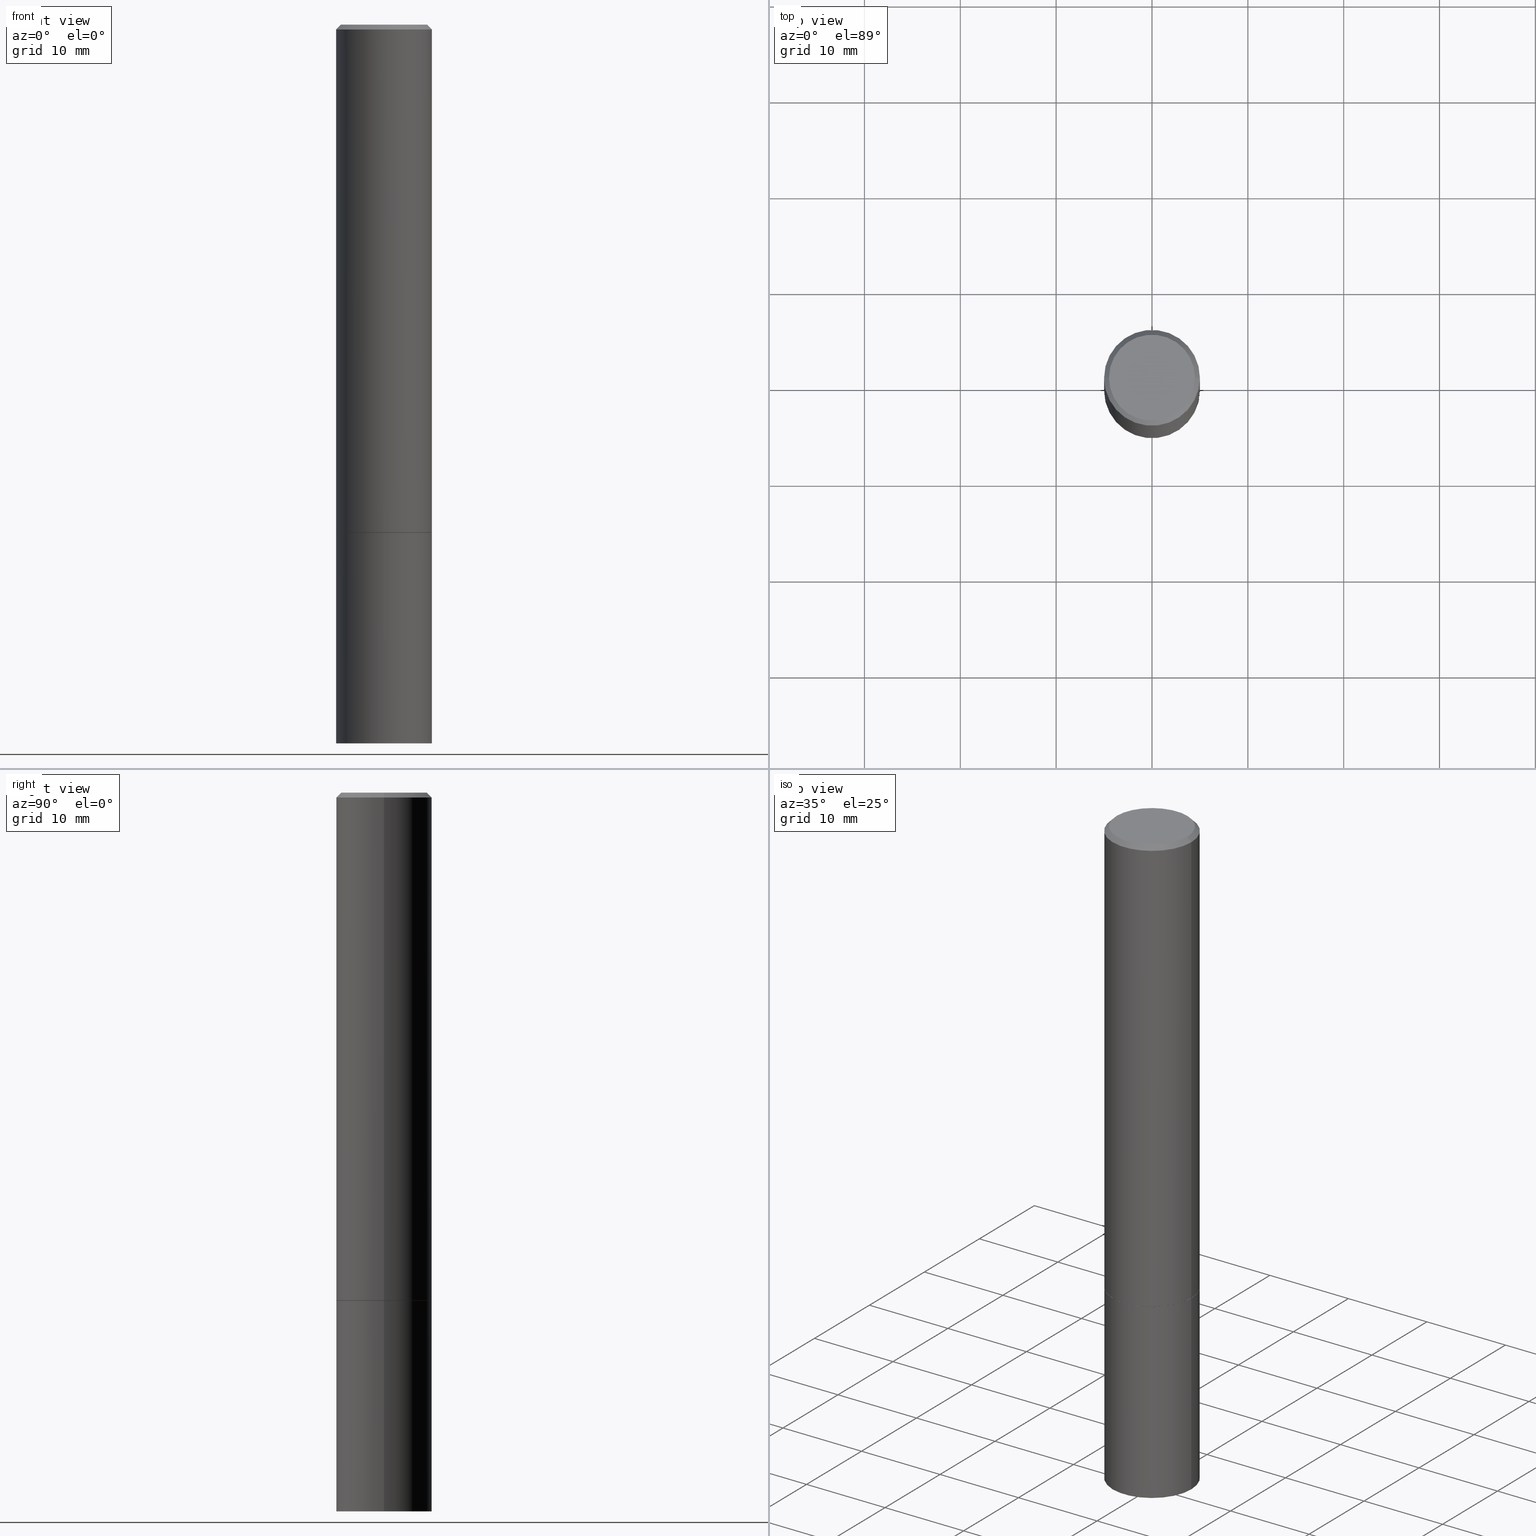
[diagram: canonical four-view strip — front | top / right | iso, engineering-drawing reading convention]
A machine part, canonical four-view strip (front | top / right | iso — engineering-drawing reading convention). The complete STEP part file that produces these views, byte-faithful:
ISO-10303-21;
HEADER;
FILE_DESCRIPTION (( 'STEP AP203' ),
    '1' );
FILE_NAME ('48769.STEP',
    '2024-02-28T14:20:51',
    ( '' ),
    ( '' ),
    'SwSTEP 2.0',
    'SolidWorks 2023',
    '' );
FILE_SCHEMA (( 'CONFIG_CONTROL_DESIGN' ));
ENDSEC;

DATA;
#1 = CARTESIAN_POINT ( 'NONE',  ( 5.100514289060338336E-29, -7.282182628425147921E-15, -2.085699999999999665 ) ) ;
#2 = APPROVAL ( #360, 'UNSPECIFIED' ) ;
#3 = CARTESIAN_POINT ( 'NONE',  ( 0.1968500000000000250, -1.374596203102541608E-15, 9.598753983154300858E-30 ) ) ;
#4 = AXIS2_PLACEMENT_3D ( 'NONE', #364, #29, #107 ) ;
#5 = CARTESIAN_POINT ( 'NONE',  ( 4.890937612370276662E-31, -6.982962677686296539E-17, -0.02000000000000001776 ) ) ;
#6 = ADVANCED_FACE ( 'NONE', ( #80 ), #151, .T. ) ;
#7 = CARTESIAN_POINT ( 'NONE',  ( 0.1958499999999999963, -8.653287350188846522E-15, -2.086699999999999999 ) ) ;
#8 = FACE_OUTER_BOUND ( 'NONE', #283, .T. ) ;
#9 = DIRECTION ( 'NONE',  ( -2.445468806185136597E-29, 3.491481338843145583E-15, 1.000000000000000000 ) ) ;
#10 = DIRECTION ( 'NONE',  ( -2.445468806185136597E-29, 3.491481338843145583E-15, 1.000000000000000000 ) ) ;
#11 = ADVANCED_FACE ( 'NONE', ( #330 ), #333, .F. ) ;
#12 =( NAMED_UNIT ( * ) PLANE_ANGLE_UNIT ( ) SI_UNIT ( $, .RADIAN. ) );
#13 = ORIENTED_EDGE ( 'NONE', *, *, #344, .T. ) ;
#14 = CYLINDRICAL_SURFACE ( 'NONE', #166, 0.1968499999999999139 ) ;
#15 = ORIENTED_EDGE ( 'NONE', *, *, #260, .T. ) ;
#16 = CONICAL_SURFACE ( 'NONE', #289, 0.1958499999999999963, 0.7853981633974141952 ) ;
#17 = EDGE_CURVE ( 'NONE', #249, #215, #132, .T. ) ;
#18 = DIRECTION ( 'NONE',  ( 2.445468806185136597E-29, -3.491481338843145583E-15, -1.000000000000000000 ) ) ;
#19 = CC_DESIGN_PERSON_AND_ORGANIZATION_ASSIGNMENT ( #51, #306, ( #50 ) ) ;
#20 = VERTEX_POINT ( 'NONE', #171 ) ;
#21 = SHAPE_DEFINITION_REPRESENTATION ( #268, #126 ) ;
#22 = FACE_OUTER_BOUND ( 'NONE', #212, .T. ) ;
#23 = DIRECTION ( 'NONE',  ( -2.445468806185136597E-29, 3.491481338843145583E-15, 1.000000000000000000 ) ) ;
#24 = CC_DESIGN_SECURITY_CLASSIFICATION ( #50, ( #88 ) ) ;
#25 = PERSON_AND_ORGANIZATION ( #342, #173 ) ;
#26 = DIRECTION ( 'NONE',  ( 1.000000000000000000, -6.982962677686268288E-15, 0.000000000000000000 ) ) ;
#27 = CALENDAR_DATE ( 2024, 28, 2 ) ;
#28 = DIRECTION ( 'NONE',  ( 0.7071067811865232589, -2.468850131082003836E-15, 0.7071067811865715536 ) ) ;
#29 = DIRECTION ( 'NONE',  ( -2.445468806185136597E-29, 3.491481338843145583E-15, 1.000000000000000000 ) ) ;
#30 = AXIS2_PLACEMENT_3D ( 'NONE', #263, #317, #177 ) ;
#31 = DIRECTION ( 'NONE',  ( -1.000000000000000000, 6.982962677686265922E-15, -4.876176775795935793E-29 ) ) ;
#32 = LINE ( 'NONE', #3, #119 ) ;
#33 = CARTESIAN_POINT ( 'NONE',  ( 0.1968499999999997752, -1.420318657638187347E-15, -0.02000000000000001776 ) ) ;
#34 = EDGE_CURVE ( 'NONE', #139, #48, #303, .T. ) ;
#35 = AXIS2_PLACEMENT_3D ( 'NONE', #332, #141, #261 ) ;
#36 = DIRECTION ( 'NONE',  ( 1.000000000000000000, -6.982962677686267499E-15, 0.000000000000000000 ) ) ;
#37 = FACE_OUTER_BOUND ( 'NONE', #127, .T. ) ;
#38 = CONICAL_SURFACE ( 'NONE', #108, 0.1968499999999997752, 0.7853981633974476129 ) ;
#39 = CARTESIAN_POINT ( 'NONE',  ( 0.1968499999999999139, -1.374596203102541017E-15, 9.598753983154295253E-30 ) ) ;
#40 = PLANE ( 'NONE',  #97 ) ;
#41 = CC_DESIGN_PERSON_AND_ORGANIZATION_ASSIGNMENT ( #25, #250, ( #129 ) ) ;
#42 = DIRECTION ( 'NONE',  ( 1.000000000000000000, -6.982962677686265922E-15, 4.876176775795935793E-29 ) ) ;
#43 = CC_DESIGN_APPROVAL ( #345, ( #63 ) ) ;
#44 = APPROVAL_DATE_TIME ( #196, #345 ) ;
#45 = DIRECTION ( 'NONE',  ( -2.438088387897960049E-29, 3.491481338843145188E-15, 1.000000000000000000 ) ) ;
#46 = CALENDAR_DATE ( 2024, 28, 2 ) ;
#47 = DIRECTION ( 'NONE',  ( -2.445468806185136597E-29, 3.491481338843145583E-15, 1.000000000000000000 ) ) ;
#48 = VERTEX_POINT ( 'NONE', #198 ) ;
#49 = CIRCLE ( 'NONE', #178, 0.1968500000000000250 ) ;
#50 = SECURITY_CLASSIFICATION ( '', '', #104 ) ;
#51 = PERSON_AND_ORGANIZATION ( #342, #173 ) ;
#52 = VERTEX_POINT ( 'NONE', #230 ) ;
#53 = APPROVAL_STATUS ( 'not_yet_approved' ) ;
#54 = CARTESIAN_POINT ( 'NONE',  ( 5.102959757866523939E-29, -7.285674109763990928E-15, -2.086699999999999999 ) ) ;
#55 = EDGE_CURVE ( 'NONE', #20, #190, #184, .T. ) ;
#56 = AXIS2_PLACEMENT_3D ( 'NONE', #78, #366, #111 ) ;
#57 = LOCAL_TIME ( 9, 20, 51.00000000000000000, #254 ) ;
#58 = DIMENSIONAL_EXPONENTS ( 1.000000000000000000, 0.000000000000000000, 0.000000000000000000, 0.000000000000000000, 0.000000000000000000, 0.000000000000000000, 0.000000000000000000 ) ;
#59 = LINE ( 'NONE', #174, #293 ) ;
#60 = DIRECTION ( 'NONE',  ( -2.445468806185136877E-29, 3.491481338843145188E-15, 1.000000000000000000 ) ) ;
#61 = DIRECTION ( 'NONE',  ( 2.438088387897960049E-29, -3.491481338843145188E-15, -1.000000000000000000 ) ) ;
#62 = AXIS2_PLACEMENT_3D ( 'NONE', #186, #216, #96 ) ;
#63 = PRODUCT_DEFINITION ( 'UNKNOWN', '', #88, #352 ) ;
#64 = CARTESIAN_POINT ( 'NONE',  ( 0.000000000000000000, 0.000000000000000000, 0.000000000000000000 ) ) ;
#65 = ORIENTED_EDGE ( 'NONE', *, *, #312, .F. ) ;
#66 = CIRCLE ( 'NONE', #35, 0.1768499999999997851 ) ;
#67 = DIRECTION ( 'NONE',  ( 2.438088387897960049E-29, -3.491481338843145188E-15, -1.000000000000000000 ) ) ;
#68 = ORIENTED_EDGE ( 'NONE', *, *, #269, .F. ) ;
#69 = ORIENTED_EDGE ( 'NONE', *, *, #149, .T. ) ;
#70 = EDGE_CURVE ( 'NONE', #215, #52, #160, .T. ) ;
#71 =( LENGTH_UNIT ( ) NAMED_UNIT ( * ) SI_UNIT ( $, .METRE. ) );
#72 = PERSON_AND_ORGANIZATION ( #342, #173 ) ;
#73 = ORIENTED_EDGE ( 'NONE', *, *, #280, .F. ) ;
#74 = CALENDAR_DATE ( 2024, 28, 2 ) ;
#75 = VERTEX_POINT ( 'NONE', #257 ) ;
#76 = APPROVAL_DATE_TIME ( #79, #2 ) ;
#77 = EDGE_CURVE ( 'NONE', #193, #276, #338, .T. ) ;
#78 = CARTESIAN_POINT ( 'NONE',  ( 0.000000000000000000, 0.000000000000000000, 0.000000000000000000 ) ) ;
#79 = DATE_AND_TIME ( #46, #204 ) ;
#80 = FACE_OUTER_BOUND ( 'NONE', #100, .T. ) ;
#81 = PERSON_AND_ORGANIZATION ( #342, #173 ) ;
#82 = ORIENTED_EDGE ( 'NONE', *, *, #55, .F. ) ;
#83 = EDGE_CURVE ( 'NONE', #190, #20, #66, .T. ) ;
#84 = PRODUCT_RELATED_PRODUCT_CATEGORY ( 'detail', '', ( #129 ) ) ;
#85 = UNCERTAINTY_MEASURE_WITH_UNIT (LENGTH_MEASURE( 1.000000000000000082E-05 ), #153, 'distance_accuracy_value', 'NONE');
#86 = ORIENTED_EDGE ( 'NONE', *, *, #201, .F. ) ;
#87 = AXIS2_PLACEMENT_3D ( 'NONE', #54, #45, #358 ) ;
#88 = PRODUCT_DEFINITION_FORMATION_WITH_SPECIFIED_SOURCE ( 'ANY', '', #129, .NOT_KNOWN. ) ;
#89 = DIRECTION ( 'NONE',  ( -2.445468806185136597E-29, 3.491481338843145583E-15, 1.000000000000000000 ) ) ;
#90 = DIRECTION ( 'NONE',  ( 2.445468806185136597E-29, -3.491481338843145583E-15, -1.000000000000000000 ) ) ;
#91 = CARTESIAN_POINT ( 'NONE',  ( 1.374596203102592490E-15, 0.1968499999999927252, -2.086700000000000887 ) ) ;
#92 = CC_DESIGN_APPROVAL ( #218, ( #50 ) ) ;
#93 = ADVANCED_FACE ( 'NONE', ( #22 ), #224, .T. ) ;
#94 = EDGE_LOOP ( 'NONE', ( #223, #123 ) ) ;
#95 = CIRCLE ( 'NONE', #266, 0.1958499999999999963 ) ;
#96 = DIRECTION ( 'NONE',  ( 1.000000000000000000, -6.982962677686266711E-15, 4.876176775795935793E-29 ) ) ;
#97 = AXIS2_PLACEMENT_3D ( 'NONE', #121, #67, #325 ) ;
#98 = EDGE_CURVE ( 'NONE', #48, #75, #337, .T. ) ;
#99 = FACE_OUTER_BOUND ( 'NONE', #348, .T. ) ;
#100 = EDGE_LOOP ( 'NONE', ( #308, #278, #336, #217 ) ) ;
#101 = ORIENTED_EDGE ( 'NONE', *, *, #211, .F. ) ;
#102 = APPLICATION_PROTOCOL_DEFINITION ( 'international standard', 'config_control_design', 1994, #247 ) ;
#103 = DIRECTION ( 'NONE',  ( -2.445468806185136597E-29, 3.491481338843145583E-15, 1.000000000000000000 ) ) ;
#104 = SECURITY_CLASSIFICATION_LEVEL ( 'unclassified' ) ;
#105 = ORIENTED_EDGE ( 'NONE', *, *, #235, .F. ) ;
#106 = PERSON_AND_ORGANIZATION ( #342, #173 ) ;
#107 = DIRECTION ( 'NONE',  ( 1.000000000000000000, -6.982962677686266711E-15, 0.000000000000000000 ) ) ;
#108 = AXIS2_PLACEMENT_3D ( 'NONE', #152, #18, #122 ) ;
#109 = ADVANCED_FACE ( 'NONE', ( #146 ), #341, .F. ) ;
#110 = AXIS2_PLACEMENT_3D ( 'NONE', #64, #10, #42 ) ;
#111 = DIRECTION ( 'NONE',  ( 1.000000000000000000, -6.982962677686265922E-15, 4.876176775795935793E-29 ) ) ;
#112 = FACE_OUTER_BOUND ( 'NONE', #251, .T. ) ;
#113 = DIRECTION ( 'NONE',  ( -2.445468806185136877E-29, 3.491481338843145188E-15, 1.000000000000000000 ) ) ;
#114 = CIRCLE ( 'NONE', #245, 0.1968500000000000250 ) ;
#115 =( GEOMETRIC_REPRESENTATION_CONTEXT ( 3 ) GLOBAL_UNCERTAINTY_ASSIGNED_CONTEXT ( ( #85 ) ) GLOBAL_UNIT_ASSIGNED_CONTEXT ( ( #153, #12, #181 ) ) REPRESENTATION_CONTEXT ( 'NONE', 'WORKASPACE' ) );
#116 = CARTESIAN_POINT ( 'NONE',  ( -0.1968499999999999139, 1.398703375343756604E-15, -9.682923725166778072E-30 ) ) ;
#117 = CARTESIAN_POINT ( 'NONE',  ( 0.1968500000000000250, -1.168424230043858014E-14, -2.952799999999999869 ) ) ;
#118 = CARTESIAN_POINT ( 'NONE',  ( 4.890937612370276662E-31, -6.982962677686296539E-17, -0.02000000000000001776 ) ) ;
#119 = VECTOR ( 'NONE', #113, 39.37007874015748143 ) ;
#120 = LINE ( 'NONE', #189, #309 ) ;
#121 = CARTESIAN_POINT ( 'NONE',  ( 1.374596203102613789E-15, 0.1968499999999896999, -2.952800000000000313 ) ) ;
#122 = DIRECTION ( 'NONE',  ( -1.000000000000000000, 6.982962677686266711E-15, 0.000000000000000000 ) ) ;
#123 = ORIENTED_EDGE ( 'NONE', *, *, #211, .T. ) ;
#124 = CONICAL_SURFACE ( 'NONE', #239, 0.1968499999999997752, 0.7853981633974476129 ) ;
#125 = LOCAL_TIME ( 9, 20, 51.00000000000000000, #168 ) ;
#126 = ADVANCED_BREP_SHAPE_REPRESENTATION ( '48769', ( #365, #130, #319 ), #115 ) ;
#127 = EDGE_LOOP ( 'NONE', ( #82, #163, #69, #105 ) ) ;
#128 = ORIENTED_EDGE ( 'NONE', *, *, #167, .T. ) ;
#129 = PRODUCT ( '48769', '48769', '', ( #225 ) ) ;
#130 = MANIFOLD_SOLID_BREP ( 'Body-Move/Copy2[2]', #220 ) ;
#131 = ORIENTED_EDGE ( 'NONE', *, *, #167, .F. ) ;
#132 = CIRCLE ( 'NONE', #191, 0.1958499999999999963 ) ;
#133 = ORIENTED_EDGE ( 'NONE', *, *, #179, .F. ) ;
#134 = APPROVAL_PERSON_ORGANIZATION ( #72, #218, #199 ) ;
#135 = APPROVAL_ROLE ( '' ) ;
#136 = DIRECTION ( 'NONE',  ( -2.445468806185136597E-29, 3.491481338843145583E-15, 1.000000000000000000 ) ) ;
#137 = COORDINATED_UNIVERSAL_TIME_OFFSET ( 5, 0, .BEHIND. ) ;
#138 = ADVANCED_FACE ( 'NONE', ( #172 ), #180, .F. ) ;
#139 = VERTEX_POINT ( 'NONE', #117 ) ;
#140 = CALENDAR_DATE ( 2024, 28, 2 ) ;
#141 = DIRECTION ( 'NONE',  ( -2.445468806185136597E-29, 3.491481338843145583E-15, 1.000000000000000000 ) ) ;
#142 = VECTOR ( 'NONE', #202, 39.37007874015748143 ) ;
#143 = CARTESIAN_POINT ( 'NONE',  ( 0.1968500000000000250, -8.660270312866532536E-15, -2.086699999999999999 ) ) ;
#144 = CARTESIAN_POINT ( 'NONE',  ( -0.1968499999999997752, 1.304766576325677127E-15, -0.02000000000000001776 ) ) ;
#145 = CC_DESIGN_PERSON_AND_ORGANIZATION_ASSIGNMENT ( #81, #357, ( #63 ) ) ;
#146 = FACE_OUTER_BOUND ( 'NONE', #94, .T. ) ;
#147 = LINE ( 'NONE', #116, #281 ) ;
#148 = ADVANCED_FACE ( 'NONE', ( #8 ), #124, .T. ) ;
#149 = EDGE_CURVE ( 'NONE', #276, #193, #298, .T. ) ;
#150 = DIRECTION ( 'NONE',  ( -1.000000000000000000, 6.982962677686265922E-15, -4.876176775795935793E-29 ) ) ;
#151 = CONICAL_SURFACE ( 'NONE', #228, 0.1958499999999999963, 0.7853981633974141952 ) ;
#152 = CARTESIAN_POINT ( 'NONE',  ( 4.890937612370276662E-31, -6.982962677686296539E-17, -0.02000000000000001776 ) ) ;
#153 =( CONVERSION_BASED_UNIT ( 'INCH', #157 ) LENGTH_UNIT ( ) NAMED_UNIT ( #58 ) );
#154 = ORIENTED_EDGE ( 'NONE', *, *, #77, .F. ) ;
#155 = DIRECTION ( 'NONE',  ( 1.000000000000000000, -6.982962677686266711E-15, 4.876176775795935793E-29 ) ) ;
#156 = ORIENTED_EDGE ( 'NONE', *, *, #77, .T. ) ;
#157 = LENGTH_MEASURE_WITH_UNIT ( LENGTH_MEASURE( 0.02539999999999999897 ), #71 );
#158 = ORIENTED_EDGE ( 'NONE', *, *, #98, .F. ) ;
#159 = APPROVAL_ROLE ( '' ) ;
#160 = LINE ( 'NONE', #169, #233 ) ;
#161 = DIRECTION ( 'NONE',  ( 1.000000000000000000, 0.000000000000000000, 0.000000000000000000 ) ) ;
#162 = APPLICATION_CONTEXT ( 'configuration controlled 3d designs of mechanical parts and assemblies' ) ;
#163 = ORIENTED_EDGE ( 'NONE', *, *, #312, .T. ) ;
#164 = PERSON_AND_ORGANIZATION ( #342, #173 ) ;
#165 = EDGE_LOOP ( 'NONE', ( #351, #327 ) ) ;
#166 = AXIS2_PLACEMENT_3D ( 'NONE', #275, #9, #155 ) ;
#167 = EDGE_CURVE ( 'NONE', #354, #193, #147, .T. ) ;
#168 = COORDINATED_UNIVERSAL_TIME_OFFSET ( 5, 0, .BEHIND. ) ;
#169 = CARTESIAN_POINT ( 'NONE',  ( 0.1958499999999999963, -8.653287350188846522E-15, -2.086699999999999999 ) ) ;
#170 = APPROVAL_DATE_TIME ( #284, #218 ) ;
#171 = CARTESIAN_POINT ( 'NONE',  ( 0.1768499999999997851, -1.316798864272040563E-15, 4.268512490109333727E-18 ) ) ;
#172 = FACE_OUTER_BOUND ( 'NONE', #240, .T. ) ;
#173 = ORGANIZATION ( 'UNSPECIFIED', 'UNSPECIFIED', '' ) ;
#174 = CARTESIAN_POINT ( 'NONE',  ( -0.1968499999999997752, 1.304766576325677127E-15, -0.02000000000000001776 ) ) ;
#175 = CC_DESIGN_PERSON_AND_ORGANIZATION_ASSIGNMENT ( #106, #282, ( #88 ) ) ;
#176 = CARTESIAN_POINT ( 'NONE',  ( -0.1958499999999999963, -5.894076161777834937E-15, -2.086699999999999999 ) ) ;
#177 = DIRECTION ( 'NONE',  ( 1.000000000000000000, -6.982962677686267499E-15, 0.000000000000000000 ) ) ;
#178 = AXIS2_PLACEMENT_3D ( 'NONE', #340, #89, #316 ) ;
#179 = EDGE_CURVE ( 'NONE', #249, #354, #236, .T. ) ;
#180 = PLANE ( 'NONE',  #203 ) ;
#181 =( NAMED_UNIT ( * ) SI_UNIT ( $, .STERADIAN. ) SOLID_ANGLE_UNIT ( ) );
#182 = FACE_OUTER_BOUND ( 'NONE', #183, .T. ) ;
#183 = EDGE_LOOP ( 'NONE', ( #131, #273, #13, #154 ) ) ;
#184 = CIRCLE ( 'NONE', #197, 0.1768499999999997851 ) ;
#185 = LOCAL_TIME ( 9, 20, 51.00000000000000000, #137 ) ;
#186 = CARTESIAN_POINT ( 'NONE',  ( 0.000000000000000000, 0.000000000000000000, 0.000000000000000000 ) ) ;
#187 = ORIENTED_EDGE ( 'NONE', *, *, #70, .T. ) ;
#188 = CARTESIAN_POINT ( 'NONE',  ( 7.220980290903470182E-29, -1.030964609733603853E-14, -2.952799999999999869 ) ) ;
#189 = CARTESIAN_POINT ( 'NONE',  ( 0.1968499999999997752, -1.420318657638187347E-15, -0.02000000000000001776 ) ) ;
#190 = VERTEX_POINT ( 'NONE', #206 ) ;
#191 = AXIS2_PLACEMENT_3D ( 'NONE', #279, #136, #314 ) ;
#192 = DATE_AND_TIME ( #74, #185 ) ;
#193 = VERTEX_POINT ( 'NONE', #144 ) ;
#194 = PERSON_AND_ORGANIZATION ( #342, #173 ) ;
#195 = VERTEX_POINT ( 'NONE', #143 ) ;
#196 = DATE_AND_TIME ( #27, #57 ) ;
#197 = AXIS2_PLACEMENT_3D ( 'NONE', #311, #23, #288 ) ;
#198 = CARTESIAN_POINT ( 'NONE',  ( -0.1968500000000000250, -7.398956728206258518E-15, -2.952799999999999869 ) ) ;
#199 = APPROVAL_ROLE ( '' ) ;
#200 = ORIENTED_EDGE ( 'NONE', *, *, #34, .F. ) ;
#201 = EDGE_CURVE ( 'NONE', #354, #52, #114, .T. ) ;
#202 = DIRECTION ( 'NONE',  ( -2.445468806185136877E-29, 3.491481338843145188E-15, 1.000000000000000000 ) ) ;
#203 = AXIS2_PLACEMENT_3D ( 'NONE', #265, #290, #31 ) ;
#204 = LOCAL_TIME ( 9, 20, 51.00000000000000000, #331 ) ;
#205 = DIRECTION ( 'NONE',  ( 1.000000000000000000, -6.982962677686267499E-15, 0.000000000000000000 ) ) ;
#206 = CARTESIAN_POINT ( 'NONE',  ( -0.1768499999999997851, 1.269851762937246069E-15, 4.268512490091652920E-18 ) ) ;
#207 = EDGE_CURVE ( 'NONE', #52, #354, #213, .T. ) ;
#208 = DIRECTION ( 'NONE',  ( 1.000000000000000000, -6.982962677686266711E-15, 0.000000000000000000 ) ) ;
#209 = DIRECTION ( 'NONE',  ( 1.000000000000000000, -6.982962677686267499E-15, 0.000000000000000000 ) ) ;
#210 = ORIENTED_EDGE ( 'NONE', *, *, #83, .F. ) ;
#211 = EDGE_CURVE ( 'NONE', #75, #195, #252, .T. ) ;
#212 = EDGE_LOOP ( 'NONE', ( #158, #244, #15, #101 ) ) ;
#213 = CIRCLE ( 'NONE', #335, 0.1968500000000000250 ) ;
#214 = CYLINDRICAL_SURFACE ( 'NONE', #110, 0.1968500000000000250 ) ;
#215 = VERTEX_POINT ( 'NONE', #7 ) ;
#216 = DIRECTION ( 'NONE',  ( -2.445468806185136597E-29, 3.491481338843145583E-15, 1.000000000000000000 ) ) ;
#217 = ORIENTED_EDGE ( 'NONE', *, *, #70, .F. ) ;
#218 = APPROVAL ( #362, 'UNSPECIFIED' ) ;
#219 = ORIENTED_EDGE ( 'NONE', *, *, #344, .F. ) ;
#220 = CLOSED_SHELL ( 'NONE', ( #6, #356, #295, #148, #287, #231, #11, #138 ) ) ;
#221 = AXIS2_PLACEMENT_3D ( 'NONE', #91, #61, #150 ) ;
#222 = APPROVAL_PERSON_ORGANIZATION ( #329, #2, #159 ) ;
#223 = ORIENTED_EDGE ( 'NONE', *, *, #269, .T. ) ;
#224 = CYLINDRICAL_SURFACE ( 'NONE', #56, 0.1968500000000000250 ) ;
#225 = MECHANICAL_CONTEXT ( 'NONE', #247, 'mechanical' ) ;
#226 = ORIENTED_EDGE ( 'NONE', *, *, #260, .F. ) ;
#227 = DATE_TIME_ROLE ( 'classification_date' ) ;
#228 = AXIS2_PLACEMENT_3D ( 'NONE', #307, #47, #26 ) ;
#229 = ORIENTED_EDGE ( 'NONE', *, *, #17, .T. ) ;
#230 = CARTESIAN_POINT ( 'NONE',  ( 0.1968500000000000250, -8.656778831527691107E-15, -2.085699999999999665 ) ) ;
#231 = ADVANCED_FACE ( 'NONE', ( #112 ), #16, .T. ) ;
#232 = CARTESIAN_POINT ( 'NONE',  ( 5.100514289060338336E-29, -7.282182628425147921E-15, -2.085699999999999665 ) ) ;
#233 = VECTOR ( 'NONE', #28, 39.37007874015748854 ) ;
#234 = VECTOR ( 'NONE', #272, 39.37007874015748143 ) ;
#235 = EDGE_CURVE ( 'NONE', #190, #193, #59, .T. ) ;
#236 = LINE ( 'NONE', #176, #359 ) ;
#237 = DIRECTION ( 'NONE',  ( -2.445468806185136597E-29, 3.491481338843145583E-15, 1.000000000000000000 ) ) ;
#238 = DIRECTION ( 'NONE',  ( -2.445468806185136597E-29, 3.491481338843145583E-15, 1.000000000000000000 ) ) ;
#239 = AXIS2_PLACEMENT_3D ( 'NONE', #118, #90, #343 ) ;
#240 = EDGE_LOOP ( 'NONE', ( #255, #271 ) ) ;
#241 = CC_DESIGN_DATE_AND_TIME_ASSIGNMENT ( #192, #304, ( #63 ) ) ;
#242 = FACE_OUTER_BOUND ( 'NONE', #361, .T. ) ;
#243 = ORIENTED_EDGE ( 'NONE', *, *, #34, .T. ) ;
#244 = ORIENTED_EDGE ( 'NONE', *, *, #280, .T. ) ;
#245 = AXIS2_PLACEMENT_3D ( 'NONE', #232, #294, #36 ) ;
#246 = EDGE_LOOP ( 'NONE', ( #200, #73 ) ) ;
#247 = APPLICATION_CONTEXT ( 'configuration controlled 3d designs of mechanical parts and assemblies' ) ;
#248 = CARTESIAN_POINT ( 'NONE',  ( -0.1968500000000000250, -2.277302752257247033E-15, -2.085699999999999665 ) ) ;
#249 = VERTEX_POINT ( 'NONE', #291 ) ;
#250 = PERSON_AND_ORGANIZATION_ROLE ( 'design_owner' ) ;
#251 = EDGE_LOOP ( 'NONE', ( #133, #229, #187, #86 ) ) ;
#252 = CIRCLE ( 'NONE', #30, 0.1968500000000000250 ) ;
#253 = APPLICATION_PROTOCOL_DEFINITION ( 'international standard', 'config_control_design', 1994, #162 ) ;
#254 = COORDINATED_UNIVERSAL_TIME_OFFSET ( 5, 0, .BEHIND. ) ;
#255 = ORIENTED_EDGE ( 'NONE', *, *, #83, .T. ) ;
#256 = CARTESIAN_POINT ( 'NONE',  ( 0.000000000000000000, 0.000000000000000000, 0.000000000000000000 ) ) ;
#257 = CARTESIAN_POINT ( 'NONE',  ( -0.1968500000000000250, -7.398956728206258518E-15, -2.086699999999999999 ) ) ;
#258 = CLOSED_SHELL ( 'NONE', ( #334, #339, #109, #93 ) ) ;
#259 = LOCAL_TIME ( 9, 20, 51.00000000000000000, #277 ) ;
#260 = EDGE_CURVE ( 'NONE', #139, #195, #32, .T. ) ;
#261 = DIRECTION ( 'NONE',  ( 1.000000000000000000, -6.982962677686266711E-15, 4.875932113059884174E-29 ) ) ;
#262 = CC_DESIGN_PERSON_AND_ORGANIZATION_ASSIGNMENT ( #194, #310, ( #88 ) ) ;
#263 = CARTESIAN_POINT ( 'NONE',  ( 5.102959757866523939E-29, -7.285674109763990928E-15, -2.086699999999999999 ) ) ;
#264 = DIRECTION ( 'NONE',  ( -0.7071067811865469066, 2.468850131082251144E-15, -0.7071067811865479058 ) ) ;
#265 = CARTESIAN_POINT ( 'NONE',  ( 1.234936949548814617E-15, 0.1768499999999997851, -6.153342185293593634E-16 ) ) ;
#266 = AXIS2_PLACEMENT_3D ( 'NONE', #270, #349, #301 ) ;
#267 = DIRECTION ( 'NONE',  ( -2.445468806185136597E-29, 3.491481338843145583E-15, 1.000000000000000000 ) ) ;
#268 = PRODUCT_DEFINITION_SHAPE ( 'NONE', 'NONE',  #63 ) ;
#269 = EDGE_CURVE ( 'NONE', #195, #75, #49, .T. ) ;
#270 = CARTESIAN_POINT ( 'NONE',  ( 5.102959757866523939E-29, -7.285674109763990928E-15, -2.086699999999999999 ) ) ;
#271 = ORIENTED_EDGE ( 'NONE', *, *, #55, .T. ) ;
#272 = DIRECTION ( 'NONE',  ( -2.445468806185136877E-29, 3.491481338843145188E-15, 1.000000000000000000 ) ) ;
#273 = ORIENTED_EDGE ( 'NONE', *, *, #201, .T. ) ;
#274 = AXIS2_PLACEMENT_3D ( 'NONE', #188, #347, #209 ) ;
#275 = CARTESIAN_POINT ( 'NONE',  ( 0.000000000000000000, 0.000000000000000000, 0.000000000000000000 ) ) ;
#276 = VERTEX_POINT ( 'NONE', #33 ) ;
#277 = COORDINATED_UNIVERSAL_TIME_OFFSET ( 5, 0, .BEHIND. ) ;
#278 = ORIENTED_EDGE ( 'NONE', *, *, #179, .T. ) ;
#279 = CARTESIAN_POINT ( 'NONE',  ( 5.102959757866523939E-29, -7.285674109763990928E-15, -2.086699999999999999 ) ) ;
#280 = EDGE_CURVE ( 'NONE', #48, #139, #328, .T. ) ;
#281 = VECTOR ( 'NONE', #60, 39.37007874015748143 ) ;
#282 = PERSON_AND_ORGANIZATION_ROLE ( 'creator' ) ;
#283 = EDGE_LOOP ( 'NONE', ( #65, #210, #300, #156 ) ) ;
#284 = DATE_AND_TIME ( #313, #125 ) ;
#285 = CARTESIAN_POINT ( 'NONE',  ( 7.220980290903470182E-29, -1.030964609733603853E-14, -2.952799999999999869 ) ) ;
#286 = CC_DESIGN_DATE_AND_TIME_ASSIGNMENT ( #326, #227, ( #50 ) ) ;
#287 = ADVANCED_FACE ( 'NONE', ( #182 ), #297, .T. ) ;
#288 = DIRECTION ( 'NONE',  ( 1.000000000000000000, -6.982962677686266711E-15, 4.875932113059884174E-29 ) ) ;
#289 = AXIS2_PLACEMENT_3D ( 'NONE', #292, #238, #315 ) ;
#290 = DIRECTION ( 'NONE',  ( 2.438088387897960049E-29, -3.491481338843145188E-15, -1.000000000000000000 ) ) ;
#291 = CARTESIAN_POINT ( 'NONE',  ( -0.1958499999999999963, -5.888777707429612535E-15, -2.086699999999999999 ) ) ;
#292 = CARTESIAN_POINT ( 'NONE',  ( 5.102959757866523939E-29, -7.285674109763990928E-15, -2.086699999999999999 ) ) ;
#293 = VECTOR ( 'NONE', #264, 39.37007874015748854 ) ;
#294 = DIRECTION ( 'NONE',  ( -2.445468806185136597E-29, 3.491481338843145583E-15, 1.000000000000000000 ) ) ;
#295 = ADVANCED_FACE ( 'NONE', ( #37 ), #38, .T. ) ;
#296 = EDGE_CURVE ( 'NONE', #215, #249, #95, .T. ) ;
#297 = CYLINDRICAL_SURFACE ( 'NONE', #62, 0.1968499999999999139 ) ;
#298 = CIRCLE ( 'NONE', #346, 0.1968499999999997752 ) ;
#299 = APPROVAL_PERSON_ORGANIZATION ( #164, #345, #135 ) ;
#300 = ORIENTED_EDGE ( 'NONE', *, *, #235, .T. ) ;
#301 = DIRECTION ( 'NONE',  ( 1.000000000000000000, -6.982962677686268288E-15, 0.000000000000000000 ) ) ;
#302 = ORIENTED_EDGE ( 'NONE', *, *, #149, .F. ) ;
#303 = CIRCLE ( 'NONE', #323, 0.1968500000000000250 ) ;
#304 = DATE_TIME_ROLE ( 'creation_date' ) ;
#305 = CARTESIAN_POINT ( 'NONE',  ( -0.1968500000000000250, 1.398703375343757393E-15, -9.682923725166783677E-30 ) ) ;
#306 = PERSON_AND_ORGANIZATION_ROLE ( 'classification_officer' ) ;
#307 = CARTESIAN_POINT ( 'NONE',  ( 5.102959757866523939E-29, -7.285674109763990928E-15, -2.086699999999999999 ) ) ;
#308 = ORIENTED_EDGE ( 'NONE', *, *, #296, .T. ) ;
#309 = VECTOR ( 'NONE', #321, 39.37007874015748854 ) ;
#310 = PERSON_AND_ORGANIZATION_ROLE ( 'design_supplier' ) ;
#311 = CARTESIAN_POINT ( 'NONE',  ( -1.043851414335219820E-46, 1.490343170380447200E-32, 4.268512490100411279E-18 ) ) ;
#312 = EDGE_CURVE ( 'NONE', #20, #276, #120, .T. ) ;
#313 = CALENDAR_DATE ( 2024, 28, 2 ) ;
#314 = DIRECTION ( 'NONE',  ( 1.000000000000000000, -6.982962677686268288E-15, 0.000000000000000000 ) ) ;
#315 = DIRECTION ( 'NONE',  ( 1.000000000000000000, -6.982962677686268288E-15, 0.000000000000000000 ) ) ;
#316 = DIRECTION ( 'NONE',  ( 1.000000000000000000, -6.982962677686267499E-15, 0.000000000000000000 ) ) ;
#317 = DIRECTION ( 'NONE',  ( -2.445468806185136597E-29, 3.491481338843145583E-15, 1.000000000000000000 ) ) ;
#318 = DIRECTION ( 'NONE',  ( -0.7071067811865232589, 7.493145998870265808E-15, 0.7071067811865715536 ) ) ;
#319 = AXIS2_PLACEMENT_3D ( 'NONE', #256, #355, #161 ) ;
#320 = LINE ( 'NONE', #39, #234 ) ;
#321 = DIRECTION ( 'NONE',  ( 0.7071067811865469066, -7.319954787623252890E-15, -0.7071067811865479058 ) ) ;
#322 = ORIENTED_EDGE ( 'NONE', *, *, #98, .T. ) ;
#323 = AXIS2_PLACEMENT_3D ( 'NONE', #285, #103, #363 ) ;
#324 = CC_DESIGN_APPROVAL ( #2, ( #88 ) ) ;
#325 = DIRECTION ( 'NONE',  ( -1.000000000000000000, 6.982962677686265922E-15, -4.876176775795935793E-29 ) ) ;
#326 = DATE_AND_TIME ( #140, #259 ) ;
#327 = ORIENTED_EDGE ( 'NONE', *, *, #17, .F. ) ;
#328 = CIRCLE ( 'NONE', #274, 0.1968500000000000250 ) ;
#329 = PERSON_AND_ORGANIZATION ( #342, #173 ) ;
#330 = FACE_OUTER_BOUND ( 'NONE', #165, .T. ) ;
#331 = COORDINATED_UNIVERSAL_TIME_OFFSET ( 5, 0, .BEHIND. ) ;
#332 = CARTESIAN_POINT ( 'NONE',  ( -1.043851414335219820E-46, 1.490343170380447200E-32, 4.268512490100411279E-18 ) ) ;
#333 = PLANE ( 'NONE',  #87 ) ;
#334 = ADVANCED_FACE ( 'NONE', ( #99 ), #214, .T. ) ;
#335 = AXIS2_PLACEMENT_3D ( 'NONE', #1, #267, #205 ) ;
#336 = ORIENTED_EDGE ( 'NONE', *, *, #207, .F. ) ;
#337 = LINE ( 'NONE', #305, #142 ) ;
#338 = CIRCLE ( 'NONE', #4, 0.1968499999999997752 ) ;
#339 = ADVANCED_FACE ( 'NONE', ( #353 ), #40, .T. ) ;
#340 = CARTESIAN_POINT ( 'NONE',  ( 5.102959757866523939E-29, -7.285674109763990928E-15, -2.086699999999999999 ) ) ;
#341 = PLANE ( 'NONE',  #221 ) ;
#342 = PERSON ( 'UNSPECIFIED', 'UNSPECIFIED', 'UNSPECIFIED', ('UNSPECIFIED'), ('UNSPECIFIED'), ('UNSPECIFIED') ) ;
#343 = DIRECTION ( 'NONE',  ( -1.000000000000000000, 6.982962677686266711E-15, 0.000000000000000000 ) ) ;
#344 = EDGE_CURVE ( 'NONE', #52, #276, #320, .T. ) ;
#345 = APPROVAL ( #53, 'UNSPECIFIED' ) ;
#346 = AXIS2_PLACEMENT_3D ( 'NONE', #5, #237, #208 ) ;
#347 = DIRECTION ( 'NONE',  ( -2.445468806185136597E-29, 3.491481338843145583E-15, 1.000000000000000000 ) ) ;
#348 = EDGE_LOOP ( 'NONE', ( #243, #322, #68, #226 ) ) ;
#349 = DIRECTION ( 'NONE',  ( -2.445468806185136597E-29, 3.491481338843145583E-15, 1.000000000000000000 ) ) ;
#350 = ORIENTED_EDGE ( 'NONE', *, *, #207, .T. ) ;
#351 = ORIENTED_EDGE ( 'NONE', *, *, #296, .F. ) ;
#352 = DESIGN_CONTEXT ( 'detailed design', #162, 'design' ) ;
#353 = FACE_OUTER_BOUND ( 'NONE', #246, .T. ) ;
#354 = VERTEX_POINT ( 'NONE', #248 ) ;
#355 = DIRECTION ( 'NONE',  ( 0.000000000000000000, 0.000000000000000000, 1.000000000000000000 ) ) ;
#356 = ADVANCED_FACE ( 'NONE', ( #242 ), #14, .T. ) ;
#357 = PERSON_AND_ORGANIZATION_ROLE ( 'creator' ) ;
#358 = DIRECTION ( 'NONE',  ( 1.000000000000000000, -6.982962677686265922E-15, 4.876176775795935793E-29 ) ) ;
#359 = VECTOR ( 'NONE', #318, 39.37007874015748854 ) ;
#360 = APPROVAL_STATUS ( 'not_yet_approved' ) ;
#361 = EDGE_LOOP ( 'NONE', ( #350, #128, #302, #219 ) ) ;
#362 = APPROVAL_STATUS ( 'not_yet_approved' ) ;
#363 = DIRECTION ( 'NONE',  ( 1.000000000000000000, -6.982962677686267499E-15, 0.000000000000000000 ) ) ;
#364 = CARTESIAN_POINT ( 'NONE',  ( 4.890937612370276662E-31, -6.982962677686296539E-17, -0.02000000000000001776 ) ) ;
#365 = MANIFOLD_SOLID_BREP ( 'Body-Move/Copy2[1]', #258 ) ;
#366 = DIRECTION ( 'NONE',  ( -2.445468806185136597E-29, 3.491481338843145583E-15, 1.000000000000000000 ) ) ;
ENDSEC;
END-ISO-10303-21;
